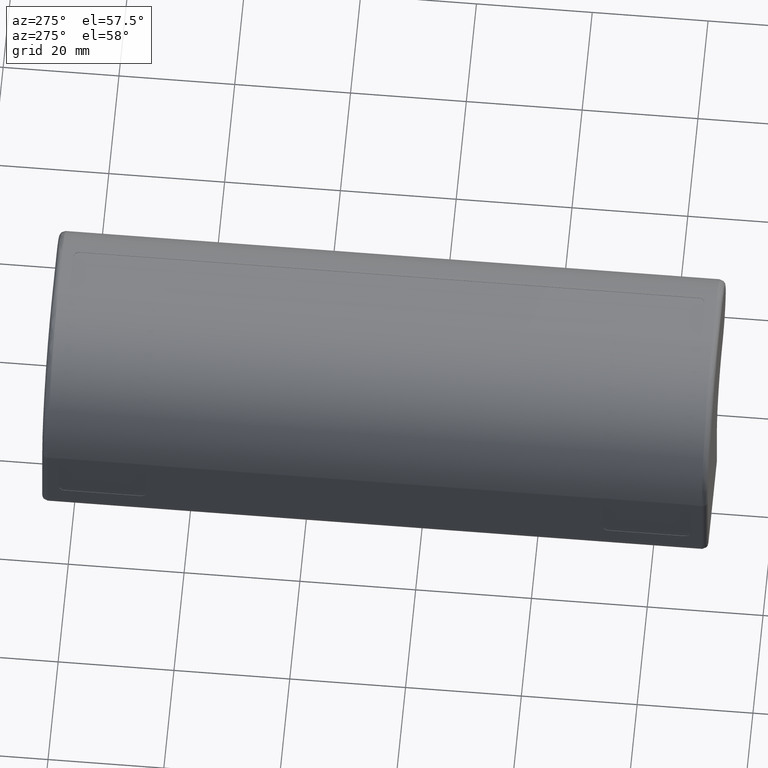
[diagram: clean part render]
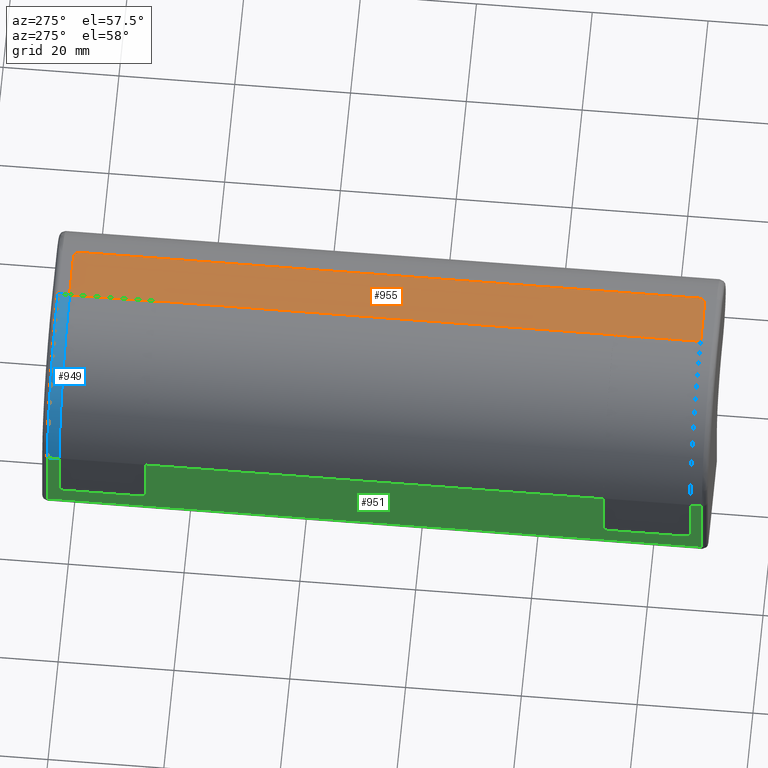
[diagram: same view with three faces highlighted in distinct colors, each labeled with its STEP entity id]
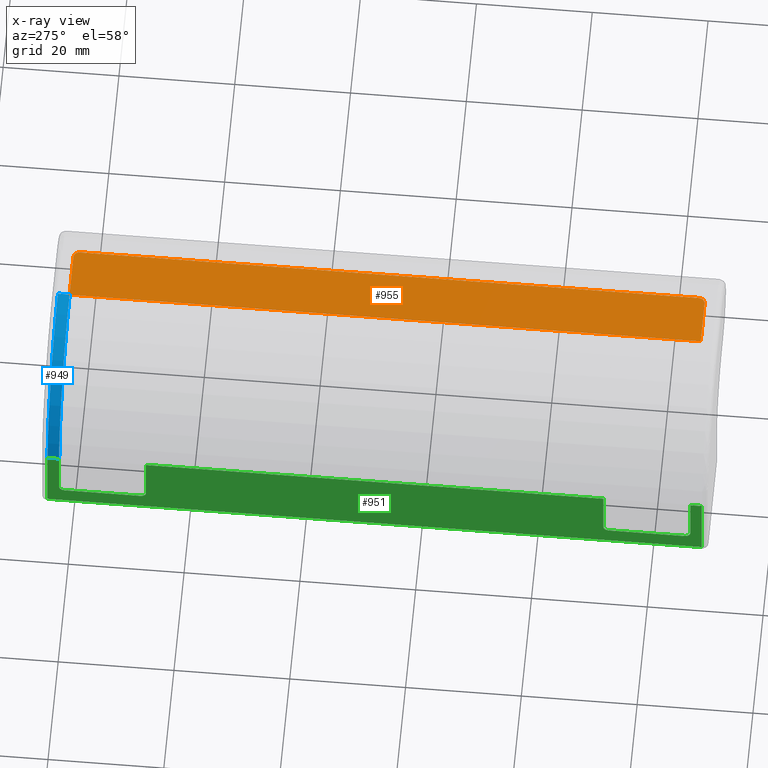
[diagram: x-ray of the same camera — body ghosted, the three highlighted faces saturated]
A machine part, auxiliary view with three faces highlighted in distinct colors.
The next image is the same camera in x-ray (body ghosted, the three faces saturated) — at least one of them is partly hidden behind the body in this view.
Their STEP definitions:

[orange] entity #955 — the highlighted planar face has unit normal (0, 0, -1).
#43=PLANE('',#1040);
#83=FACE_OUTER_BOUND('',#141,.T.);
#141=EDGE_LOOP('',(#762,#763,#764,#765,#766,#767,#768,#769));
#192=LINE('',#1447,#269);
#200=LINE('',#1476,#277);
#205=LINE('',#1491,#282);
#212=LINE('',#1509,#289);
#223=LINE('',#1534,#300);
#233=LINE('',#1562,#310);
#269=VECTOR('',#1138,7.74761906729071);
#277=VECTOR('',#1166,7.74761906729073);
#282=VECTOR('',#1179,15.);
#289=VECTOR('',#1196,78.9999999995398);
#300=VECTOR('',#1225,15.);
#310=VECTOR('',#1253,106.99999999954);
#353=CIRCLE('',#1034,1.);
#355=CIRCLE('',#1038,1.);
#409=VERTEX_POINT('',#1444);
#410=VERTEX_POINT('',#1446);
#420=VERTEX_POINT('',#1473);
#421=VERTEX_POINT('',#1475);
#427=VERTEX_POINT('',#1489);
#433=VERTEX_POINT('',#1507);
#444=VERTEX_POINT('',#1552);
#447=VERTEX_POINT('',#1560);
#500=EDGE_CURVE('',#409,#410,#192,.T.);
#514=EDGE_CURVE('',#420,#421,#200,.T.);
#522=EDGE_CURVE('',#427,#420,#205,.T.);
#531=EDGE_CURVE('',#433,#427,#212,.T.);
#545=EDGE_CURVE('',#410,#433,#223,.T.);
#554=EDGE_CURVE('',#409,#444,#353,.T.);
#559=EDGE_CURVE('',#447,#444,#233,.T.);
#560=EDGE_CURVE('',#447,#421,#355,.T.);
#762=ORIENTED_EDGE('',*,*,#554,.T.);
#763=ORIENTED_EDGE('',*,*,#559,.F.);
#764=ORIENTED_EDGE('',*,*,#560,.T.);
#765=ORIENTED_EDGE('',*,*,#514,.F.);
#766=ORIENTED_EDGE('',*,*,#522,.F.);
#767=ORIENTED_EDGE('',*,*,#531,.F.);
#768=ORIENTED_EDGE('',*,*,#545,.F.);
#769=ORIENTED_EDGE('',*,*,#500,.F.);
#955=ADVANCED_FACE('',(#83),#43,.F.);
#1034=AXIS2_PLACEMENT_3D('',#1553,#1244,#1245);
#1038=AXIS2_PLACEMENT_3D('',#1564,#1256,#1257);
#1040=AXIS2_PLACEMENT_3D('',#1566,#1260,#1261);
#1138=DIRECTION('',(-1.,0.,0.));
#1166=DIRECTION('',(1.,0.,0.));
#1179=DIRECTION('',(-1.8351862460956E-16,1.,0.));
#1196=DIRECTION('',(-1.8351862460956E-16,1.,0.));
#1225=DIRECTION('',(-1.8351862460956E-16,1.,0.));
#1244=DIRECTION('center_axis',(0.,0.,1.));
#1245=DIRECTION('ref_axis',(0.707106781186549,-0.707106781186546,0.));
#1253=DIRECTION('',(6.11131940163217E-17,-1.,0.));
#1256=DIRECTION('center_axis',(0.,0.,1.));
#1257=DIRECTION('ref_axis',(0.707106781186555,0.70710678118654,0.));
#1260=DIRECTION('center_axis',(0.,0.,-1.));
#1261=DIRECTION('ref_axis',(-1.,0.,0.));
#1444=CARTESIAN_POINT('',(18.83250350174,-6.49999999996179,35.4550992468769));
#1446=CARTESIAN_POINT('',(11.0848844344493,-6.49999999996179,35.4550992468769));
#1447=CARTESIAN_POINT('',(19.83250350174,-6.49999999996179,35.4550992468769));
#1473=CARTESIAN_POINT('',(11.0848844344493,102.499999999578,35.4550992468769));
#1475=CARTESIAN_POINT('',(18.83250350174,102.499999999578,35.4550992468769));
#1476=CARTESIAN_POINT('',(11.0848844344493,102.499999999578,35.4550992468769));
#1489=CARTESIAN_POINT('',(11.0848844344493,87.499999999578,35.4550992468769));
#1491=CARTESIAN_POINT('',(11.0848844344493,-6.49999999996179,35.4550992468769));
#1507=CARTESIAN_POINT('',(11.0848844344493,8.50000000003821,35.4550992468769));
#1509=CARTESIAN_POINT('',(11.0848844344493,-6.49999999996179,35.4550992468769));
#1534=CARTESIAN_POINT('',(11.0848844344493,-6.49999999996179,35.4550992468769));
#1552=CARTESIAN_POINT('',(19.83250350174,-5.4999999999618,35.4550992468769));
#1553=CARTESIAN_POINT('Origin',(18.83250350174,-5.4999999999618,35.4550992468769));
#1560=CARTESIAN_POINT('',(19.83250350174,101.499999999578,35.4550992468769));
#1562=CARTESIAN_POINT('',(19.83250350174,102.499999999578,35.4550992468769));
#1564=CARTESIAN_POINT('Origin',(18.83250350174,101.499999999578,35.4550992468769));
#1566=CARTESIAN_POINT('Origin',(15.4586939680947,47.9999999998081,35.4550992468769));

[blue] entity #949 — the highlighted cylindrical surface (partial cylindrical patch) has radius 20.3622 mm, axis along (0, -1, 0).
#77=FACE_OUTER_BOUND('',#135,.T.);
#135=EDGE_LOOP('',(#726,#727,#728,#729));
#224=LINE('',#1537,#301);
#225=LINE('',#1540,#302);
#301=VECTOR('',#1228,2.);
#302=VECTOR('',#1231,2.);
#344=CIRCLE('',#1011,20.3622382391187);
#351=CIRCLE('',#1029,20.3622382391187);
#424=VERTEX_POINT('',#1481);
#425=VERTEX_POINT('',#1483);
#439=VERTEX_POINT('',#1536);
#440=VERTEX_POINT('',#1538);
#518=EDGE_CURVE('',#425,#424,#344,.T.);
#546=EDGE_CURVE('',#424,#439,#224,.T.);
#547=EDGE_CURVE('',#439,#440,#351,.T.);
#548=EDGE_CURVE('',#425,#440,#225,.T.);
#726=ORIENTED_EDGE('',*,*,#518,.T.);
#727=ORIENTED_EDGE('',*,*,#546,.T.);
#728=ORIENTED_EDGE('',*,*,#547,.T.);
#729=ORIENTED_EDGE('',*,*,#548,.F.);
#912=CYLINDRICAL_SURFACE('',#1028,20.3622382391187);
#949=ADVANCED_FACE('',(#77),#912,.T.);
#1011=AXIS2_PLACEMENT_3D('',#1484,#1171,#1172);
#1028=AXIS2_PLACEMENT_3D('',#1535,#1226,#1227);
#1029=AXIS2_PLACEMENT_3D('',#1539,#1229,#1230);
#1171=DIRECTION('center_axis',(0.,1.,0.));
#1172=DIRECTION('ref_axis',(0.011199536893843,0.,0.999937283219984));
#1226=DIRECTION('center_axis',(0.,-1.,0.));
#1227=DIRECTION('ref_axis',(0.011199536893843,0.,0.999937283219984));
#1228=DIRECTION('',(0.,1.,0.));
#1229=DIRECTION('center_axis',(0.,-1.,0.));
#1230=DIRECTION('ref_axis',(-1.,0.,0.));
#1231=DIRECTION('',(0.,1.,0.));
#1481=CARTESIAN_POINT('',(11.0848844344493,102.499999999578,35.5051590277857));
#1483=CARTESIAN_POINT('',(-9.49999999996167,102.499999999578,15.1441380617739));
#1484=CARTESIAN_POINT('Origin',(10.862238239157,102.499999999578,15.1441380617745));
#1535=CARTESIAN_POINT('Origin',(10.862238239157,-9.4999999999618,15.1441380617745));
#1536=CARTESIAN_POINT('',(11.0848844344493,104.499999999578,35.5051590277857));
#1537=CARTESIAN_POINT('',(11.0848844344493,-8.4999999999618,35.5051590277857));
#1538=CARTESIAN_POINT('',(-9.49999999996167,104.499999999578,15.1441380617739));
#1539=CARTESIAN_POINT('Origin',(10.862238239157,104.499999999578,15.1441380617745));
#1540=CARTESIAN_POINT('',(-9.49999999996167,-8.4999999999618,15.1441380617739));

[green] entity #951 — the highlighted planar face has unit normal (1, 0, 0).
#41=PLANE('',#1032);
#79=FACE_OUTER_BOUND('',#137,.T.);
#137=EDGE_LOOP('',(#734,#735,#736,#737,#738,#739,#740,#741,#742,#743,#744,
#745,#746,#747,#748,#749));
#184=LINE('',#1427,#261);
#187=LINE('',#1435,#264);
#197=LINE('',#1463,#274);
#203=LINE('',#1485,#280);
#207=LINE('',#1496,#284);
#220=LINE('',#1526,#297);
#222=LINE('',#1531,#299);
#225=LINE('',#1540,#302);
#226=LINE('',#1543,#303);
#227=LINE('',#1547,#304);
#228=LINE('',#1549,#305);
#229=LINE('',#1550,#306);
#261=VECTOR('',#1122,13.);
#264=VECTOR('',#1131,8.99999999999939);
#274=VECTOR('',#1153,13.);
#280=VECTOR('',#1173,8.99999999999939);
#284=VECTOR('',#1185,8.99999999999939);
#297=VECTOR('',#1212,78.9999999995398);
#299=VECTOR('',#1220,8.99999999999939);
#302=VECTOR('',#1231,2.);
#303=VECTOR('',#1234,2.00000000000001);
#304=VECTOR('',#1239,13.1441380617739);
#305=VECTOR('',#1240,112.99999999954);
#306=VECTOR('',#1241,13.1441380617739);
#333=CIRCLE('',#992,1.);
#335=CIRCLE('',#997,1.);
#339=CIRCLE('',#1003,1.);
#341=CIRCLE('',#1007,1.);
#396=VERTEX_POINT('',#1410);
#397=VERTEX_POINT('',#1412);
#402=VERTEX_POINT('',#1426);
#403=VERTEX_POINT('',#1430);
#404=VERTEX_POINT('',#1434);
#413=VERTEX_POINT('',#1453);
#414=VERTEX_POINT('',#1455);
#416=VERTEX_POINT('',#1461);
#418=VERTEX_POINT('',#1467);
#425=VERTEX_POINT('',#1483);
#428=VERTEX_POINT('',#1495);
#438=VERTEX_POINT('',#1525);
#440=VERTEX_POINT('',#1538);
#441=VERTEX_POINT('',#1542);
#442=VERTEX_POINT('',#1546);
#443=VERTEX_POINT('',#1548);
#483=EDGE_CURVE('',#396,#397,#333,.T.);
#490=EDGE_CURVE('',#397,#402,#184,.T.);
#492=EDGE_CURVE('',#402,#403,#335,.T.);
#494=EDGE_CURVE('',#404,#403,#187,.T.);
#504=EDGE_CURVE('',#413,#414,#339,.T.);
#508=EDGE_CURVE('',#413,#416,#197,.T.);
#511=EDGE_CURVE('',#418,#416,#341,.T.);
#519=EDGE_CURVE('',#418,#425,#203,.T.);
#524=EDGE_CURVE('',#428,#414,#207,.T.);
#540=EDGE_CURVE('',#438,#428,#220,.T.);
#544=EDGE_CURVE('',#396,#438,#222,.T.);
#548=EDGE_CURVE('',#425,#440,#225,.T.);
#549=EDGE_CURVE('',#441,#404,#226,.T.);
#551=EDGE_CURVE('',#440,#442,#227,.T.);
#552=EDGE_CURVE('',#443,#442,#228,.T.);
#553=EDGE_CURVE('',#441,#443,#229,.T.);
#734=ORIENTED_EDGE('',*,*,#494,.T.);
#735=ORIENTED_EDGE('',*,*,#492,.F.);
#736=ORIENTED_EDGE('',*,*,#490,.F.);
#737=ORIENTED_EDGE('',*,*,#483,.F.);
#738=ORIENTED_EDGE('',*,*,#544,.T.);
#739=ORIENTED_EDGE('',*,*,#540,.T.);
#740=ORIENTED_EDGE('',*,*,#524,.T.);
#741=ORIENTED_EDGE('',*,*,#504,.F.);
#742=ORIENTED_EDGE('',*,*,#508,.T.);
#743=ORIENTED_EDGE('',*,*,#511,.F.);
#744=ORIENTED_EDGE('',*,*,#519,.T.);
#745=ORIENTED_EDGE('',*,*,#548,.T.);
#746=ORIENTED_EDGE('',*,*,#551,.T.);
#747=ORIENTED_EDGE('',*,*,#552,.F.);
#748=ORIENTED_EDGE('',*,*,#553,.F.);
#749=ORIENTED_EDGE('',*,*,#549,.T.);
#951=ADVANCED_FACE('',(#79),#41,.F.);
#992=AXIS2_PLACEMENT_3D('',#1413,#1109,#1110);
#997=AXIS2_PLACEMENT_3D('',#1431,#1126,#1127);
#1003=AXIS2_PLACEMENT_3D('',#1456,#1146,#1147);
#1007=AXIS2_PLACEMENT_3D('',#1469,#1159,#1160);
#1032=AXIS2_PLACEMENT_3D('',#1545,#1237,#1238);
#1109=DIRECTION('center_axis',(-1.,0.,0.));
#1110=DIRECTION('ref_axis',(0.,0.707106781186548,-0.707106781186548));
#1122=DIRECTION('',(0.,-1.,0.));
#1126=DIRECTION('center_axis',(-1.,0.,0.));
#1127=DIRECTION('ref_axis',(0.,-0.707106781186548,-0.707106781186548));
#1131=DIRECTION('',(0.,0.,-1.));
#1146=DIRECTION('center_axis',(-1.,0.,0.));
#1147=DIRECTION('ref_axis',(0.,-0.70710678118654,-0.707106781186555));
#1153=DIRECTION('',(0.,1.,0.));
#1159=DIRECTION('center_axis',(-1.,0.,0.));
#1160=DIRECTION('ref_axis',(0.,0.707106781186552,-0.707106781186543));
#1173=DIRECTION('',(0.,0.,1.));
#1185=DIRECTION('',(0.,0.,-1.));
#1212=DIRECTION('',(0.,1.,0.));
#1220=DIRECTION('',(0.,0.,1.));
#1231=DIRECTION('',(0.,1.,0.));
#1234=DIRECTION('',(0.,1.,0.));
#1237=DIRECTION('center_axis',(1.,0.,0.));
#1238=DIRECTION('ref_axis',(0.,0.,-1.));
#1239=DIRECTION('',(0.,0.,-1.));
#1240=DIRECTION('',(0.,1.,0.));
#1241=DIRECTION('',(0.,0.,-1.));
#1410=CARTESIAN_POINT('',(-9.49999999996167,8.50000000003821,6.14413806177451));
#1412=CARTESIAN_POINT('',(-9.49999999996167,7.50000000003821,5.14413806177451));
#1413=CARTESIAN_POINT('Origin',(-9.49999999996167,7.50000000003821,6.14413806177451));
#1426=CARTESIAN_POINT('',(-9.49999999996167,-5.49999999996179,5.14413806177451));
#1427=CARTESIAN_POINT('',(-9.49999999996167,8.50000000003821,5.14413806177451));
#1430=CARTESIAN_POINT('',(-9.49999999996167,-6.49999999996179,6.14413806177451));
#1431=CARTESIAN_POINT('Origin',(-9.49999999996167,-5.49999999996179,6.14413806177451));
#1434=CARTESIAN_POINT('',(-9.49999999996167,-6.49999999996179,15.1441380617739));
#1435=CARTESIAN_POINT('',(-9.49999999996167,-6.49999999996179,21.5892264411008));
#1453=CARTESIAN_POINT('',(-9.49999999996167,88.499999999578,5.14413806177451));
#1455=CARTESIAN_POINT('',(-9.49999999996167,87.499999999578,6.14413806177451));
#1456=CARTESIAN_POINT('Origin',(-9.49999999996167,88.499999999578,6.14413806177451));
#1461=CARTESIAN_POINT('',(-9.49999999996167,101.499999999578,5.14413806177451));
#1463=CARTESIAN_POINT('',(-9.49999999996167,46.4999999998081,5.14413806177451));
#1467=CARTESIAN_POINT('',(-9.49999999996167,102.499999999578,6.14413806177451));
#1469=CARTESIAN_POINT('Origin',(-9.49999999996167,101.499999999578,6.14413806177451));
#1483=CARTESIAN_POINT('',(-9.49999999996167,102.499999999578,15.1441380617739));
#1485=CARTESIAN_POINT('',(-9.49999999996167,102.499999999578,12.6441380617741));
#1495=CARTESIAN_POINT('',(-9.49999999996167,87.499999999578,15.1441380617739));
#1496=CARTESIAN_POINT('',(-9.49999999996167,87.499999999578,12.6441380617741));
#1525=CARTESIAN_POINT('',(-9.49999999996167,8.50000000003821,15.1441380617739));
#1526=CARTESIAN_POINT('',(-9.49999999996167,-8.4999999999618,15.1441380617739));
#1531=CARTESIAN_POINT('',(-9.49999999996167,8.50000000003821,21.5892264411008));
#1538=CARTESIAN_POINT('',(-9.49999999996167,104.499999999578,15.1441380617739));
#1540=CARTESIAN_POINT('',(-9.49999999996167,-8.4999999999618,15.1441380617739));
#1542=CARTESIAN_POINT('',(-9.49999999996167,-8.4999999999618,15.1441380617739));
#1543=CARTESIAN_POINT('',(-9.49999999996167,-8.4999999999618,15.1441380617739));
#1545=CARTESIAN_POINT('Origin',(-9.49999999996167,-9.4999999999618,15.1441380617739));
#1546=CARTESIAN_POINT('',(-9.49999999996167,104.499999999578,2.));
#1547=CARTESIAN_POINT('',(-9.49999999996167,104.499999999578,15.1441380617739));
#1548=CARTESIAN_POINT('',(-9.49999999996167,-8.4999999999618,2.));
#1549=CARTESIAN_POINT('',(-9.49999999996166,-8.4999999999618,2.));
#1550=CARTESIAN_POINT('',(-9.49999999996167,-8.4999999999618,15.1441380617739));